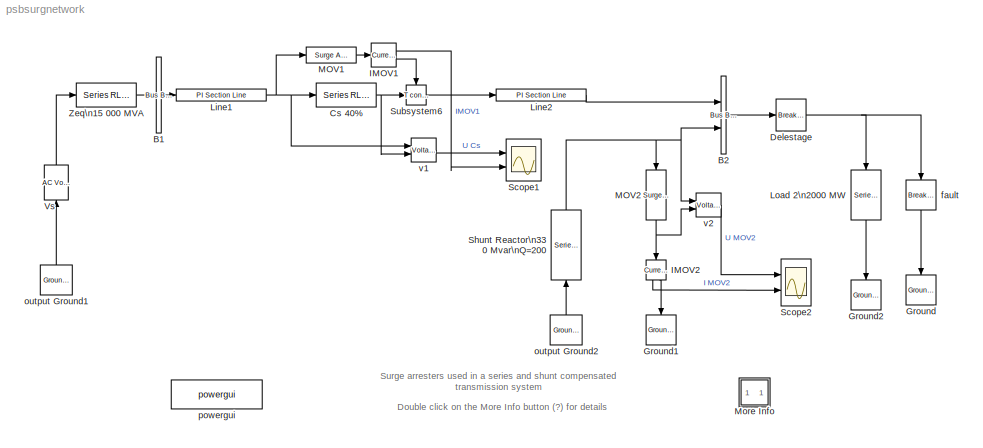
MODEL psbsurgnetwork
KIND model
BLOCK [Reference] B1  REF=powerlib2/Connectors/Bus Bar (vert)
  PSBOutputType = 11111111111111111111111111111111111111111111111111111111111111111111111111111111111111111
  Ports = [1, 1]
  SourceBlock = powerlib2/Connectors/Bus Bar (vert)
  SourceType = Bus Bar
  Tag = PoWeRsYsTeMbLoCk
  entrees = 1
  sorties = 1
BLOCK [Reference] B2  REF=powerlib2/Connectors/Bus Bar (vert)
  PSBOutputType = 11111111111111111111111111111111111111111111111111111111111111111111111111111111111111111
  Ports = [2, 1]
  SourceBlock = powerlib2/Connectors/Bus Bar (vert)
  SourceType = Bus Bar
  Tag = PoWeRsYsTeMbLoCk
  entrees = 2
  sorties = 1
BLOCK [Reference] Cs 40%  REF=powerlib2/Elements/Series RLC Branch
  PSBOutputType = 1
  Ports = [1, 1]
  SourceBlock = powerlib2/Elements/Series RLC Branch
  SourceType = Series RLC Branch
  Tag = PoWeRsYsTeMbLoCk
  a = 0
  b = 0
  c = 101.4e-6
  mesure = None
BLOCK [Reference] Delestage  REF=powerlib2/Elements/Breaker
  PSBOutputType = 1
  Ports = [1, 1]
  SourceBlock = powerlib2/Elements/Breaker
  SourceType = Breaker
  Tag = PoWeRsYsTeMbLoCk
  Ts = 0
  a = 0.1
  c = 1
  comext = off
  cs = 0
  mesure = None
  rs = inf
  times = [ 100e-3]
BLOCK [Reference] Ground  REF=powerlib2/Connectors/Ground (input)
  Ports = [1]
  SourceBlock = powerlib2/Connectors/Ground (input)
  SourceType = Ground
  Tag = PoWeRsYsTeMbLoCk
BLOCK [Reference] Ground1  REF=powerlib2/Connectors/Ground (input)
  Ports = [1]
  SourceBlock = powerlib2/Connectors/Ground (input)
  SourceType = Ground
  Tag = PoWeRsYsTeMbLoCk
BLOCK [Reference] Ground2  REF=powerlib2/Connectors/Ground (input)
  Ports = [1]
  SourceBlock = powerlib2/Connectors/Ground (input)
  SourceType = Ground
  Tag = PoWeRsYsTeMbLoCk
BLOCK [Reference] IMOV1  REF=powerlib2/Measurements/Current Measurement
  OutputType = Magnitude
  PSBOutputType = 01
  PSBequivalent = 0
  PhasorSimulation = off
  Ports = [1, 2]
  SourceBlock = powerlib2/Measurements/Current Measurement
  SourceType = Current Measurement
  Tag = PoWeRsYsTeMmEaSuReMeNt
BLOCK [Reference] IMOV2  REF=powerlib2/Measurements/Current Measurement
  OutputType = Magnitude
  PSBOutputType = 01
  PSBequivalent = 0
  PhasorSimulation = off
  Ports = [1, 2]
  SourceBlock = powerlib2/Measurements/Current Measurement
  SourceType = Current Measurement
  Tag = PoWeRsYsTeMmEaSuReMeNt
BLOCK [Reference] Line1  REF=powerlib2/Elements/PI Section Line
  PSBOutputType = 1
  Ports = [1, 1]
  SourceBlock = powerlib2/Elements/PI Section Line
  SourceType = Pi Section Line
  Tag = PoWeRsYsTeMbLoCk
  a = 0.011
  b = 0.8674e-3
  c = 13.41e-9
  d = 100
  e = 2
  f = 60
  mesure = None
BLOCK [Reference] Line2  REF=powerlib2/Elements/PI Section Line
  PSBOutputType = 1
  Ports = [1, 1]
  SourceBlock = powerlib2/Elements/PI Section Line
  SourceType = Pi Section Line
  Tag = PoWeRsYsTeMbLoCk
  a = 0.011
  b = 0.8674e-3
  c = 13.41e-9
  d = 100
  e = 2
  f = 60
  mesure = None
BLOCK [Reference] Load 2\n2000 MW  REF=powerlib2/Elements/Series RLC Load
  PSBOutputType = 1
  Ports = [1, 1]
  SourceBlock = powerlib2/Elements/Series RLC Load
  SourceType = Series RLC Load
  Tag = PoWeRsYsTeMbLoCk
  a = 735e3/sqrt(3)
  b = 60
  c = 2000e6/3
  d = 0
  e = 0
  mesure = None
BLOCK [Reference] MOV1  REF=powerlib2/Elements/Surge Arrester
  PSBOutputType = 1
  Ports = [1, 1]
  SourceBlock = powerlib2/Elements/Surge Arrester
  SourceType = Surge Arrester
  Tag = PoWeRsYsTeMbLoCk
  mesure = None
  x1 = 185e3
  x2 = 30
  x3 = 500
  x4 = [.955 50]
  x5 = [1.0 25]
  x6 = [.9915 16.5]
BLOCK [Reference] MOV2  REF=powerlib2/Elements/Surge Arrester
  PSBOutputType = 1
  Ports = [1, 1]
  SourceBlock = powerlib2/Elements/Surge Arrester
  SourceType = Surge Arrester
  Tag = PoWeRsYsTeMbLoCk
  mesure = None
  x1 = 1081e3
  x2 = 2
  x3 = 500
  x4 = [.955 50]
  x5 = [1.0 25]
  x6 = [.9915 16.5]
BLOCK [SubSystem] More Info
  MaskDisplay = disp('?')
  MaskIconFrame = on
  MaskIconOpaque = on
  MaskIconRotate = none
  MaskIconUnits = autoscale
  MinAlgLoopOccurrences = off
  Ports = []
  RTWSystemCode = Auto
  TreatAsAtomicUnit = off
BLOCK [Scope] Scope1
  DataFormat = Array
  LimitDataPoints = off
  MaxDataPoints = 500000
  NumInputPorts = 2
  Ports = [2]
  TimeRange = 0.2
  YMax = 200000~10000
  YMin = -200000~-5000
BLOCK [Scope] Scope2
  DataFormat = Array
  LimitDataPoints = off
  MaxDataPoints = 500000
  NumInputPorts = 2
  Ports = [2]
  TimeRange = 0.2
  YMax = 2e+006~1000
  YMin = -2e+006~0
BLOCK [Reference] Shunt Reactor\n330 Mvar\nQ=200  REF=powerlib2/Elements/Series RLC Load
  PSBOutputType = 1
  Ports = [1, 1]
  SourceBlock = powerlib2/Elements/Series RLC Load
  SourceType = Series RLC Load
  Tag = PoWeRsYsTeMbLoCk
  a = 735e3/sqrt(3)
  b = 60
  c = 330e6/3/200
  d = 330e6/3
  e = 0
  mesure = None
BLOCK [Reference] Subsystem6  REF=powerlib2/Connectors/T connector
  PSBOutputType = 1
  Ports = [1, 1, 1]
  SourceBlock = powerlib2/Connectors/T connector
  SourceType = Bus Bar
  Tag = PoWeRsYsTeMbLoCk
BLOCK [Reference] Vs  REF=powerlib2/Electrical\nSources/AC Voltage Source
  A = 735e3/sqrt(3)*sqrt(2)
  F = 60
  P = 0
  PSBOutputType = 1
  Ports = [1, 1]
  SourceBlock = powerlib2/Electrical\nSources/AC Voltage Source
  SourceType = AC Voltage Source
  Tag = PoWeRsYsTeMbLoCk
  mesure = None
  stime = 0
BLOCK [Reference] Zeq\n15 000 MVA  REF=powerlib2/Elements/Series RLC Branch
  PSBOutputType = 1
  Ports = [1, 1]
  SourceBlock = powerlib2/Elements/Series RLC Branch
  SourceType = Series RLC Branch
  Tag = PoWeRsYsTeMbLoCk
  a = 3.6
  b = 95.5e-3
  c = inf
  mesure = None
BLOCK [Reference] fault  REF=powerlib2/Elements/Breaker
  PSBOutputType = 1
  Ports = [1, 1]
  SourceBlock = powerlib2/Elements/Breaker
  SourceType = Breaker
  Tag = PoWeRsYsTeMbLoCk
  Ts = 0
  a = 1
  c = 0
  comext = off
  cs = 0
  mesure = None
  rs = inf
  times = [ 30e-3 300e-3]
BLOCK [Reference] output Ground1  REF=powerlib2/Connectors/Ground (output)
  PSBOutputType = 1
  Ports = [0, 1]
  SourceBlock = powerlib2/Connectors/Ground (output)
  SourceType = Ground
  Tag = PoWeRsYsTeMbLoCk
BLOCK [Reference] output Ground2  REF=powerlib2/Connectors/Ground (output)
  PSBOutputType = 1
  Ports = [0, 1]
  SourceBlock = powerlib2/Connectors/Ground (output)
  SourceType = Ground
  Tag = PoWeRsYsTeMbLoCk
BLOCK [Reference] powergui  REF=powerlib2/powergui
  DisplayStyle = off
  Frange = logspace(0,3,50)
  FreqAxis = off
  MaxFrequency = 1000
  Ports = []
  RmsSteady = 1
  SourceBlock = powerlib2/powergui
  SourceType = PSB option menu block
  StartTime = 0.0
  Ts = 0
  Xlog = off
  Ylog = off
  ZoomFFT = on
  cycles = 1
  display = off
  echomessages = off
  frequency = 60
  frequencyindice = 1
  frequencyindicesteady = 1
  fundamental = 60
  methode = off
  save = off
  variable = ZData
BLOCK [Reference] v1  REF=powerlib2/Measurements/Voltage Measurement
  OutputType = Magnitude
  PSBOutputType = 0
  PSBequivalent = 0
  PhasorSimulation = off
  Ports = [2, 1]
  SourceBlock = powerlib2/Measurements/Voltage Measurement
  SourceType = Voltage Measurement
  Tag = PoWeRsYsTeMmEaSuReMeNt
BLOCK [Reference] v2  REF=powerlib2/Measurements/Voltage Measurement
  OutputType = Magnitude
  PSBOutputType = 0
  PSBequivalent = 0
  PhasorSimulation = off
  Ports = [2, 1]
  SourceBlock = powerlib2/Measurements/Voltage Measurement
  SourceType = Voltage Measurement
  Tag = PoWeRsYsTeMmEaSuReMeNt
ANNOTATION (root): Double click on the More Info button (?) for details
ANNOTATION (root): Surge arresters used in a series and shunt compensated\n transmission system
ANNOTATION More Info: A 735 kV equivalent transmission systems feeds a load through a 200 km transmission line. The line is series compensated at the\nmiddle point and shunt compensated at its receiving end. A fault is applied at the load terminals. \nThe fault is cleared by load breaker opening. For simplification purpose, only one phase of the transmission system is modelled. \nAll parameters correspond to positive-s...<+854ch>
ANNOTATION More Info: Circuit Description
ANNOTATION More Info: Demonstration
ANNOTATION More Info: G. Sybille (Hydro-Quebec)
ANNOTATION More Info: Start the simulation. Observe the MOV voltages and currents on Scope1 and Scope2.\n\nAt fault application the capacitor voltage increases and MOV1 conducts. Peak current reaches 8.4 kA on the 2nd pulse\n2 cycles after fault application, the MOV current is symetric (4.5 kA current pulses at every half cycle).\n\nAt fault clearing, the overvoltage produced at bus B2 is limited by the shunt MOV2 .\nT...<+60ch>
ANNOTATION More Info: This demonstration illustrates use of surge arresters in a\nseries and shunt compensated 735 kV AC transmission system
LINE B1:1 -> Line1:1
LINE B2:1 -> Delestage:1
NET Cs 40%:1 -> Subsystem6:1, v1:2
NET Delestage:1 -> Load 2\n2000 MW:1, fault:1
LINE IMOV1:1 -> Scope1:2
LINE IMOV1:2 -> Subsystem6:enable
LINE IMOV2:1 -> Scope2:2
LINE IMOV2:2 -> Ground1:1
NET Line1:1 -> Cs 40%:1, MOV1:1, v1:1
LINE Line2:1 -> B2:1
LINE Load 2\n2000 MW:1 -> Ground2:1
LINE MOV1:1 -> IMOV1:1
NET MOV2:1 -> IMOV2:1, v2:2
NET Shunt Reactor\n330 Mvar\nQ=200:1 -> B2:2, MOV2:1, v2:1
LINE Subsystem6:1 -> Line2:1
LINE Vs:1 -> Zeq\n15 000 MVA:1
LINE Zeq\n15 000 MVA:1 -> B1:1
LINE fault:1 -> Ground:1
LINE output Ground1:1 -> Vs:1
LINE output Ground2:1 -> Shunt Reactor\n330 Mvar\nQ=200:1
LINE v1:1 -> Scope1:1
LINE v2:1 -> Scope2:1
note: NET lines group one-source signal fan-out (src -> all destinations, sorted); 1:1 wires keep LINE
